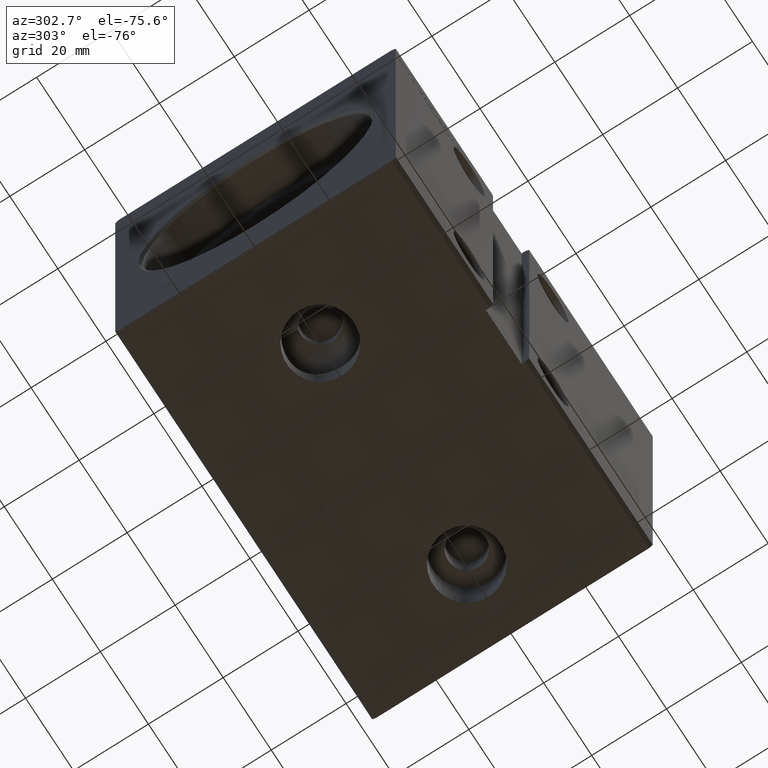
[diagram: clean part render]
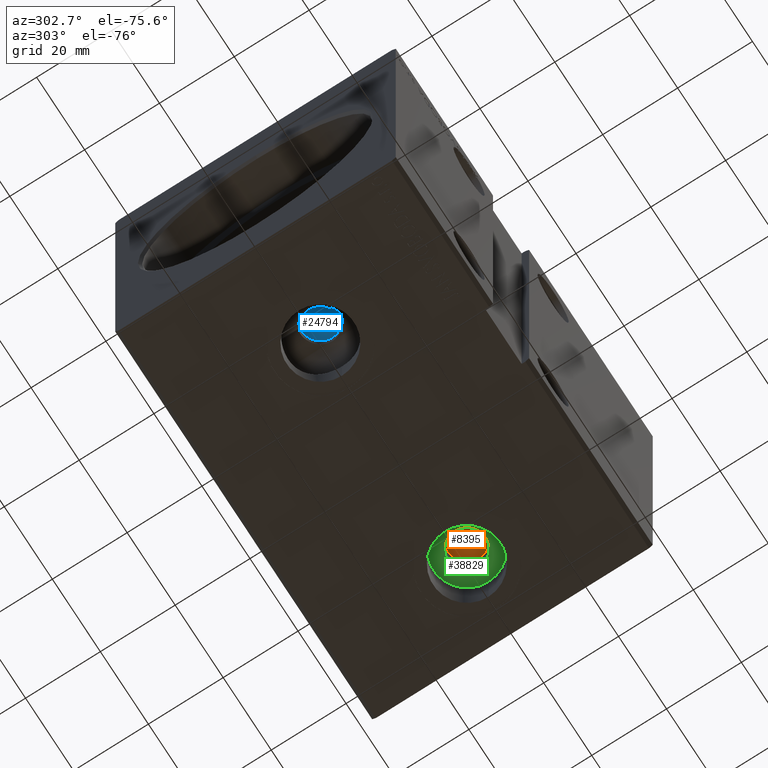
[diagram: same view with three faces highlighted in distinct colors, each labeled with its STEP entity id]
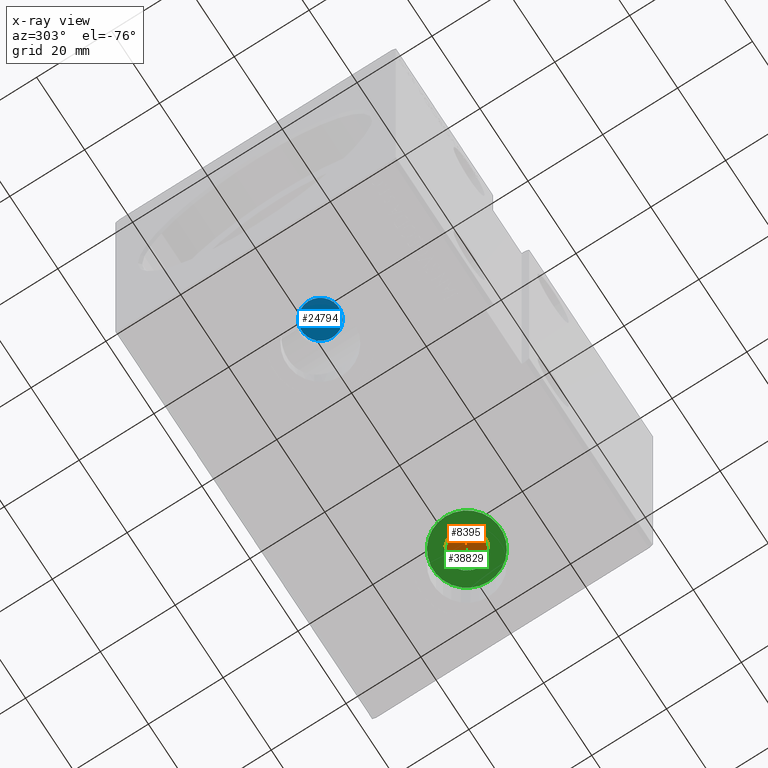
[diagram: x-ray of the same camera — body ghosted, the three highlighted faces saturated]
A machine part, auxiliary view with three faces highlighted in distinct colors.
The next image is the same camera in x-ray (body ghosted, the three faces saturated) — at least one of them is partly hidden behind the body in this view.
Their STEP definitions:

[orange] entity #8395 — the highlighted planar face has unit normal (0, 0, -1).
#1731 = CIRCLE ( 'NONE', #25540, 5.000000000000004441 ) ;
#2906 = DIRECTION ( 'NONE',  ( -1.000000000000000000, 0.000000000000000000, 0.000000000000000000 ) ) ;
#2998 = CARTESIAN_POINT ( 'NONE',  ( 88.00000000000000000, -1.338083489554506112E-14, -28.40000000000000213 ) ) ;
#4497 = EDGE_LOOP ( 'NONE', ( #13104, #15413 ) ) ;
#5867 = DIRECTION ( 'NONE',  ( -1.000000000000000000, 0.000000000000000000, -0.000000000000000000 ) ) ;
#7686 = AXIS2_PLACEMENT_3D ( 'NONE', #27221, #40278, #5867 ) ;
#8395 = ADVANCED_FACE ( 'NONE', ( #36562 ), #17892, .T. ) ;
#11503 = EDGE_CURVE ( 'NONE', #38024, #31817, #1731, .T. ) ;
#12939 = DIRECTION ( 'NONE',  ( -1.000000000000000000, 0.000000000000000000, 0.000000000000000000 ) ) ;
#13104 = ORIENTED_EDGE ( 'NONE', *, *, #16132, .T. ) ;
#13696 = CARTESIAN_POINT ( 'NONE',  ( 93.00000000000000000, -1.276851149597138381E-14, -28.40000000000000213 ) ) ;
#15131 = CARTESIAN_POINT ( 'NONE',  ( 88.00000000000000000, -1.338083489554506112E-14, -28.40000000000000213 ) ) ;
#15413 = ORIENTED_EDGE ( 'NONE', *, *, #11503, .T. ) ;
#16132 = EDGE_CURVE ( 'NONE', #31817, #38024, #37716, .T. ) ;
#17892 = PLANE ( 'NONE',  #7686 ) ;
#23166 = AXIS2_PLACEMENT_3D ( 'NONE', #2998, #40925, #12939 ) ;
#25540 = AXIS2_PLACEMENT_3D ( 'NONE', #15131, #27765, #2906 ) ;
#27221 = CARTESIAN_POINT ( 'NONE',  ( 88.00000000000000000, -1.338083489554506112E-14, -28.40000000000000213 ) ) ;
#27765 = DIRECTION ( 'NONE',  ( 0.000000000000000000, 0.000000000000000000, -1.000000000000000000 ) ) ;
#31817 = VERTEX_POINT ( 'NONE', #36845 ) ;
#36562 = FACE_OUTER_BOUND ( 'NONE', #4497, .T. ) ;
#36845 = CARTESIAN_POINT ( 'NONE',  ( 82.99999999999998579, -1.338083489554506112E-14, -28.40000000000000213 ) ) ;
#37716 = CIRCLE ( 'NONE', #23166, 5.000000000000004441 ) ;
#38024 = VERTEX_POINT ( 'NONE', #13696 ) ;
#40278 = DIRECTION ( 'NONE',  ( 0.000000000000000000, 0.000000000000000000, -1.000000000000000000 ) ) ;
#40925 = DIRECTION ( 'NONE',  ( 0.000000000000000000, 0.000000000000000000, -1.000000000000000000 ) ) ;

[blue] entity #24794 — the highlighted planar face has unit normal (0, 0, -1).
#169 = DIRECTION ( 'NONE',  ( 0.000000000000000000, 0.000000000000000000, -1.000000000000000000 ) ) ;
#3086 = CARTESIAN_POINT ( 'NONE',  ( 27.00000000000000000, -6.135200823405162107E-15, -28.40000000000000213 ) ) ;
#3372 = CARTESIAN_POINT ( 'NONE',  ( 32.00000000000000000, -5.522877423831485577E-15, -28.40000000000000213 ) ) ;
#3935 = VERTEX_POINT ( 'NONE', #40653 ) ;
#8507 = VERTEX_POINT ( 'NONE', #3372 ) ;
#8858 = DIRECTION ( 'NONE',  ( 0.000000000000000000, 0.000000000000000000, -1.000000000000000000 ) ) ;
#9416 = EDGE_LOOP ( 'NONE', ( #16766, #11101 ) ) ;
#11101 = ORIENTED_EDGE ( 'NONE', *, *, #36986, .T. ) ;
#13830 = CARTESIAN_POINT ( 'NONE',  ( 0.000000000000000000, 0.000000000000000000, -28.40000000000000213 ) ) ;
#15696 = CARTESIAN_POINT ( 'NONE',  ( 27.00000000000000000, -6.135200823405162107E-15, -28.40000000000000213 ) ) ;
#16166 = CIRCLE ( 'NONE', #32716, 5.000000000000000888 ) ;
#16766 = ORIENTED_EDGE ( 'NONE', *, *, #35890, .T. ) ;
#17532 = AXIS2_PLACEMENT_3D ( 'NONE', #3086, #169, #19430 ) ;
#19430 = DIRECTION ( 'NONE',  ( -1.000000000000000000, 0.000000000000000000, 0.000000000000000000 ) ) ;
#20035 = FACE_OUTER_BOUND ( 'NONE', #9416, .T. ) ;
#23346 = AXIS2_PLACEMENT_3D ( 'NONE', #13830, #26470, #39119 ) ;
#24157 = CIRCLE ( 'NONE', #17532, 5.000000000000000888 ) ;
#24794 = ADVANCED_FACE ( 'NONE', ( #20035 ), #32699, .T. ) ;
#26470 = DIRECTION ( 'NONE',  ( 0.000000000000000000, 0.000000000000000000, -1.000000000000000000 ) ) ;
#32699 = PLANE ( 'NONE',  #23346 ) ;
#32716 = AXIS2_PLACEMENT_3D ( 'NONE', #15696, #8858, #37462 ) ;
#35890 = EDGE_CURVE ( 'NONE', #3935, #8507, #16166, .T. ) ;
#36986 = EDGE_CURVE ( 'NONE', #8507, #3935, #24157, .T. ) ;
#37462 = DIRECTION ( 'NONE',  ( -1.000000000000000000, 0.000000000000000000, 0.000000000000000000 ) ) ;
#39119 = DIRECTION ( 'NONE',  ( -1.000000000000000000, 0.000000000000000000, -0.000000000000000000 ) ) ;
#40653 = CARTESIAN_POINT ( 'NONE',  ( 22.00000000000000000, -6.135200823405162107E-15, -28.40000000000000213 ) ) ;

[green] entity #38829 — the highlighted planar face has unit normal (0, 0, -1).
#54 = EDGE_LOOP ( 'NONE', ( #35534, #19515 ) ) ;
#2193 = VERTEX_POINT ( 'NONE', #32476 ) ;
#3129 = EDGE_CURVE ( 'NONE', #2193, #9944, #36051, .T. ) ;
#3330 = CARTESIAN_POINT ( 'NONE',  ( 79.00000000000000000, -1.338083489554506112E-14, -36.29999999999999716 ) ) ;
#4022 = EDGE_CURVE ( 'NONE', #17023, #21757, #12886, .T. ) ;
#4519 = DIRECTION ( 'NONE',  ( -1.000000000000000000, 0.000000000000000000, 0.000000000000000000 ) ) ;
#5549 = AXIS2_PLACEMENT_3D ( 'NONE', #19714, #19512, #21865 ) ;
#7883 = FACE_BOUND ( 'NONE', #27474, .T. ) ;
#8403 = EDGE_CURVE ( 'NONE', #9944, #2193, #12978, .T. ) ;
#9944 = VERTEX_POINT ( 'NONE', #13277 ) ;
#10794 = DIRECTION ( 'NONE',  ( 0.000000000000000000, 0.000000000000000000, -1.000000000000000000 ) ) ;
#11597 = PLANE ( 'NONE',  #21509 ) ;
#12608 = CARTESIAN_POINT ( 'NONE',  ( 88.00000000000000000, -1.338083489554506112E-14, -36.29999999999999716 ) ) ;
#12886 = CIRCLE ( 'NONE', #37381, 8.999999999999994671 ) ;
#12978 = CIRCLE ( 'NONE', #36147, 5.000000000000004441 ) ;
#13277 = CARTESIAN_POINT ( 'NONE',  ( 82.99999999999998579, -1.338083489554506112E-14, -36.29999999999999716 ) ) ;
#17023 = VERTEX_POINT ( 'NONE', #3330 ) ;
#19512 = DIRECTION ( 'NONE',  ( 0.000000000000000000, 0.000000000000000000, -1.000000000000000000 ) ) ;
#19515 = ORIENTED_EDGE ( 'NONE', *, *, #34051, .T. ) ;
#19714 = CARTESIAN_POINT ( 'NONE',  ( 88.00000000000000000, -1.338083489554506112E-14, -36.29999999999999716 ) ) ;
#20098 = CIRCLE ( 'NONE', #5549, 8.999999999999994671 ) ;
#20256 = DIRECTION ( 'NONE',  ( 0.000000000000000000, 0.000000000000000000, -1.000000000000000000 ) ) ;
#20664 = CARTESIAN_POINT ( 'NONE',  ( 88.00000000000000000, -1.338083489554506112E-14, -36.29999999999999716 ) ) ;
#20720 = FACE_OUTER_BOUND ( 'NONE', #54, .T. ) ;
#20797 = DIRECTION ( 'NONE',  ( -1.000000000000000000, 0.000000000000000000, 0.000000000000000000 ) ) ;
#21509 = AXIS2_PLACEMENT_3D ( 'NONE', #36686, #10794, #36082 ) ;
#21757 = VERTEX_POINT ( 'NONE', #34591 ) ;
#21865 = DIRECTION ( 'NONE',  ( -1.000000000000000000, 0.000000000000000000, 0.000000000000000000 ) ) ;
#24323 = CARTESIAN_POINT ( 'NONE',  ( 88.00000000000000000, -1.338083489554506112E-14, -36.29999999999999716 ) ) ;
#25454 = AXIS2_PLACEMENT_3D ( 'NONE', #12608, #34586, #38503 ) ;
#27061 = ORIENTED_EDGE ( 'NONE', *, *, #8403, .F. ) ;
#27261 = ORIENTED_EDGE ( 'NONE', *, *, #3129, .F. ) ;
#27474 = EDGE_LOOP ( 'NONE', ( #27061, #27261 ) ) ;
#31157 = DIRECTION ( 'NONE',  ( 0.000000000000000000, 0.000000000000000000, -1.000000000000000000 ) ) ;
#32476 = CARTESIAN_POINT ( 'NONE',  ( 93.00000000000000000, -1.276851149597138381E-14, -36.29999999999999716 ) ) ;
#34051 = EDGE_CURVE ( 'NONE', #21757, #17023, #20098, .T. ) ;
#34586 = DIRECTION ( 'NONE',  ( 0.000000000000000000, 0.000000000000000000, -1.000000000000000000 ) ) ;
#34591 = CARTESIAN_POINT ( 'NONE',  ( 96.99999999999998579, -1.227865277631244321E-14, -36.29999999999999716 ) ) ;
#35534 = ORIENTED_EDGE ( 'NONE', *, *, #4022, .T. ) ;
#36051 = CIRCLE ( 'NONE', #25454, 5.000000000000004441 ) ;
#36082 = DIRECTION ( 'NONE',  ( -1.000000000000000000, 0.000000000000000000, -0.000000000000000000 ) ) ;
#36147 = AXIS2_PLACEMENT_3D ( 'NONE', #24323, #31157, #20797 ) ;
#36686 = CARTESIAN_POINT ( 'NONE',  ( 0.000000000000000000, 0.000000000000000000, -36.29999999999999716 ) ) ;
#37381 = AXIS2_PLACEMENT_3D ( 'NONE', #20664, #20256, #4519 ) ;
#38503 = DIRECTION ( 'NONE',  ( -1.000000000000000000, 0.000000000000000000, 0.000000000000000000 ) ) ;
#38829 = ADVANCED_FACE ( 'NONE', ( #7883, #20720 ), #11597, .T. ) ;